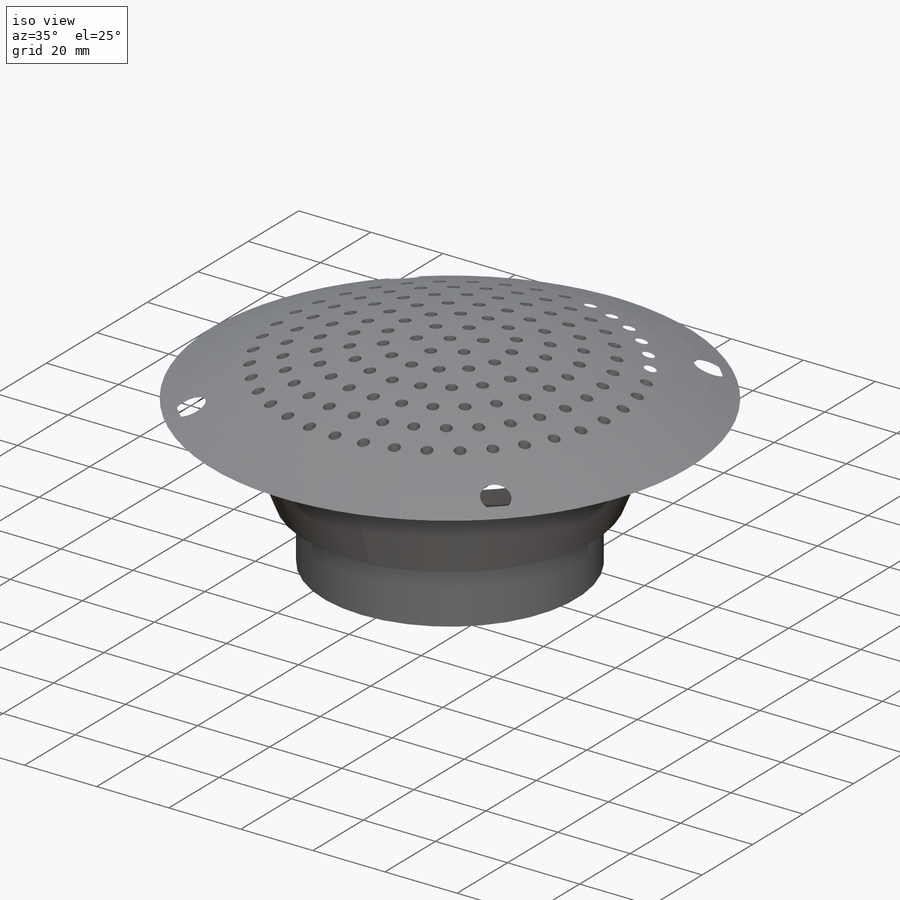
[diagram: iso view]
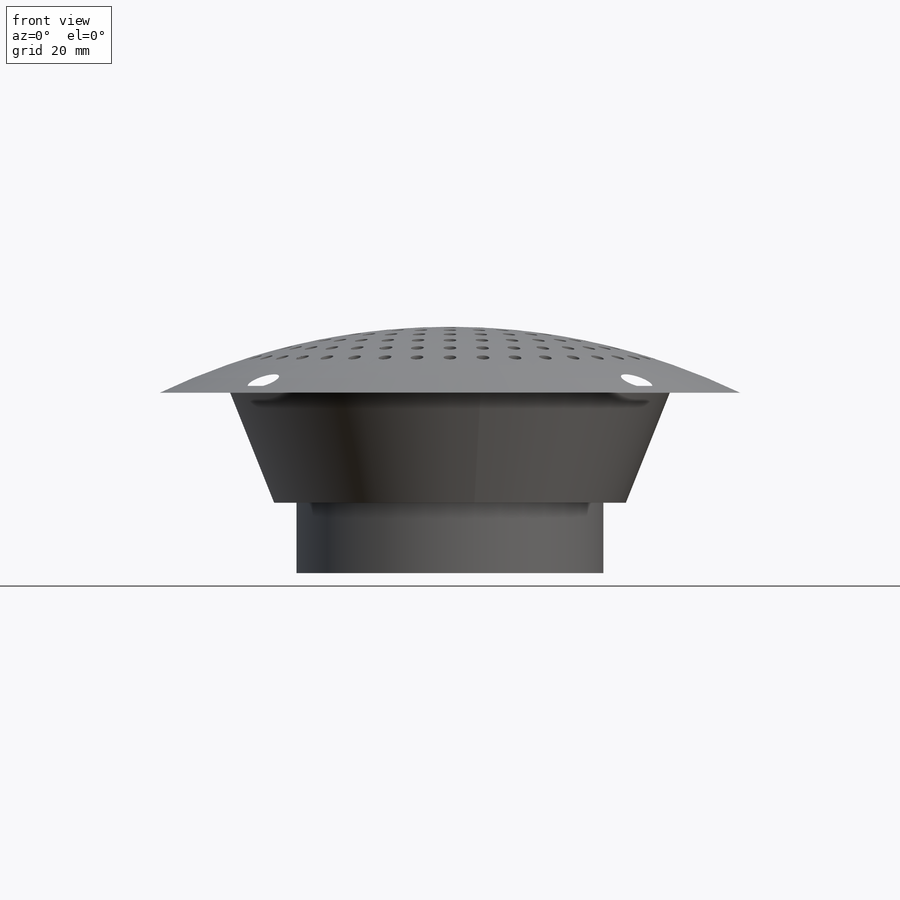
[diagram: front view]
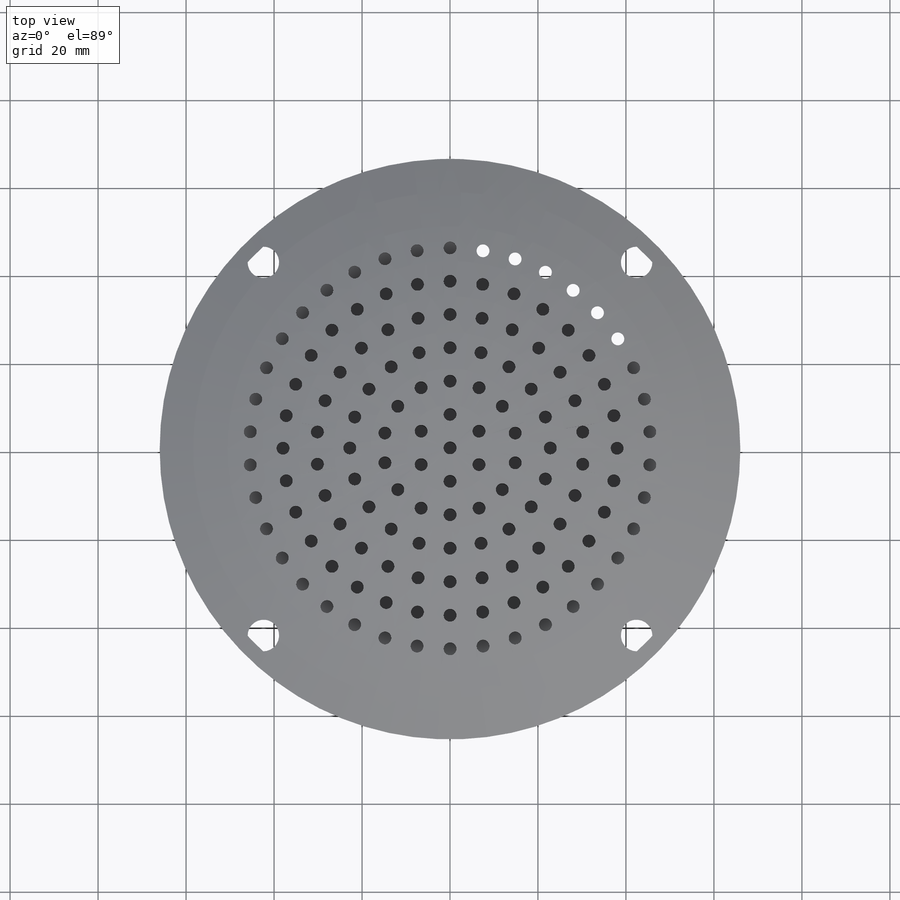
[diagram: top view]
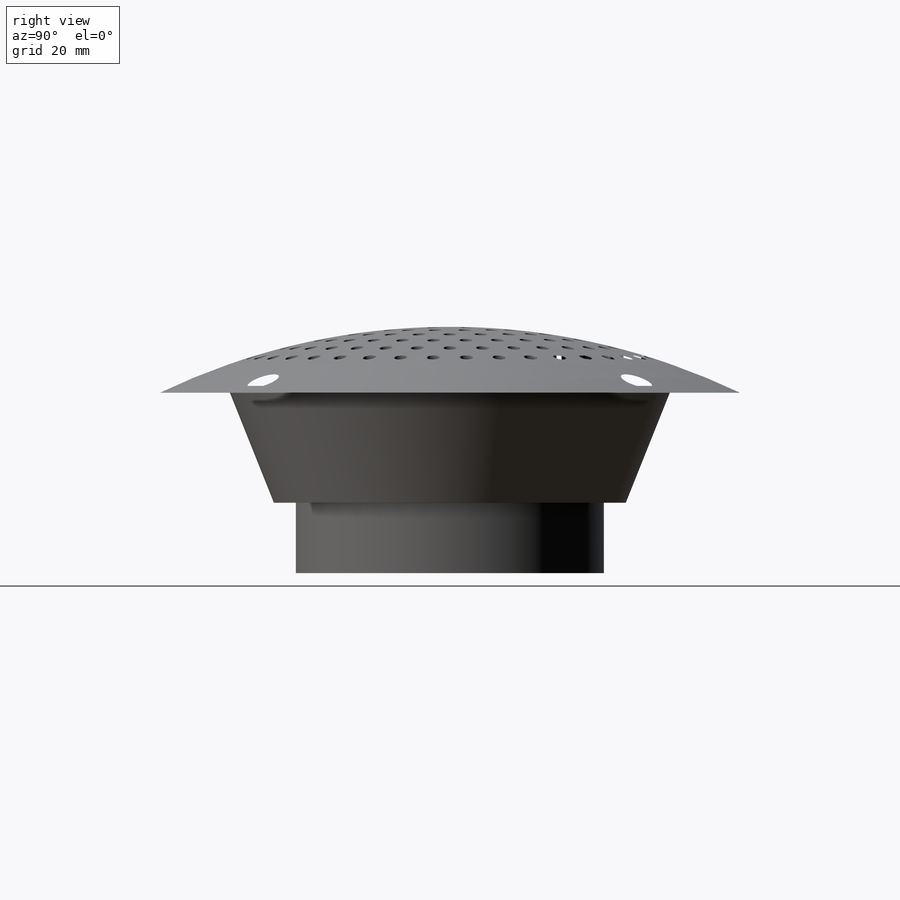
[diagram: right view]
SOLIDWORKS PART (.sldprt)
format: sldprt  version: not decoded by parser v0  size: 727,552 bytes
history: native  units: mm
features: sketch x6, material x1, revolve x1, plane x1, hole x1 (+13 scaffold rows collapsed)
feature tree (23):
  scaffold x13  (default folders/planes/origin — collapsed)
  material  "Material <not specified>"
  sketch  "Sketch1"  dims[D1=56.0mm D2=132.0mm D3=70.0mm D4=15.0mm D5=100.0mm D6=16.0mm D7=5.0mm]
  revolve  "Revolve1"  Angle=360deg
  plane  "Plane1"  Offset=5.08mm
  sketch  "Sketch3"
  sketch  "Sketch4"  dims[D10=2.92mm D4=~7.595072mm D5=~7.595072mm D3=2.54mm]
  sketch  "Sketch5"  dims[D1=120.0mm]
  hole  "CBORE for #6 Socket Head Cap Screw1"  Diameter=3.7973mm Depth=46.08mm
  sketch  "Sketch7"
  sketch  "Sketch6"  dims[hole-wizard template sketch: 42 standard entries collapsed; hole parameters kept: c12.Thru Hole Depth=46.08mm c12.C'Bore Dia.=~7.14502mm c12.C'Bore Depth=3.5052mm c12.Near C'Sink Dia.=~8.41502mm c12.D6=~4.399409mm c12.Near C'Sink Angle=90.0deg]
decode coverage: 6 of 8 modeling features carry decoded parameters
note: ~ marks probable driven/reference dimensions
note: suppression state not decoded; provenance and decode notes live in map.json
